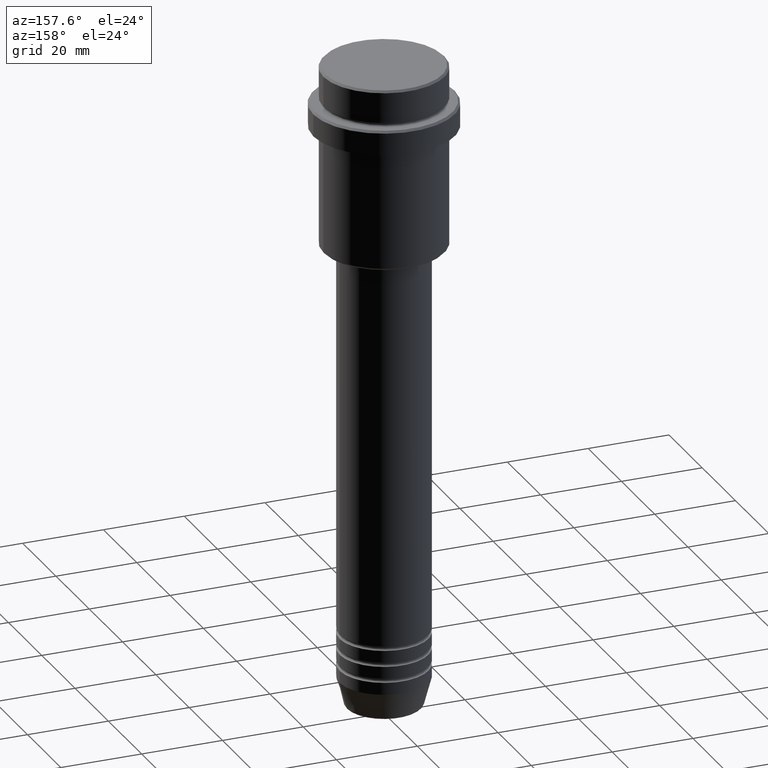
[diagram: clean part render]
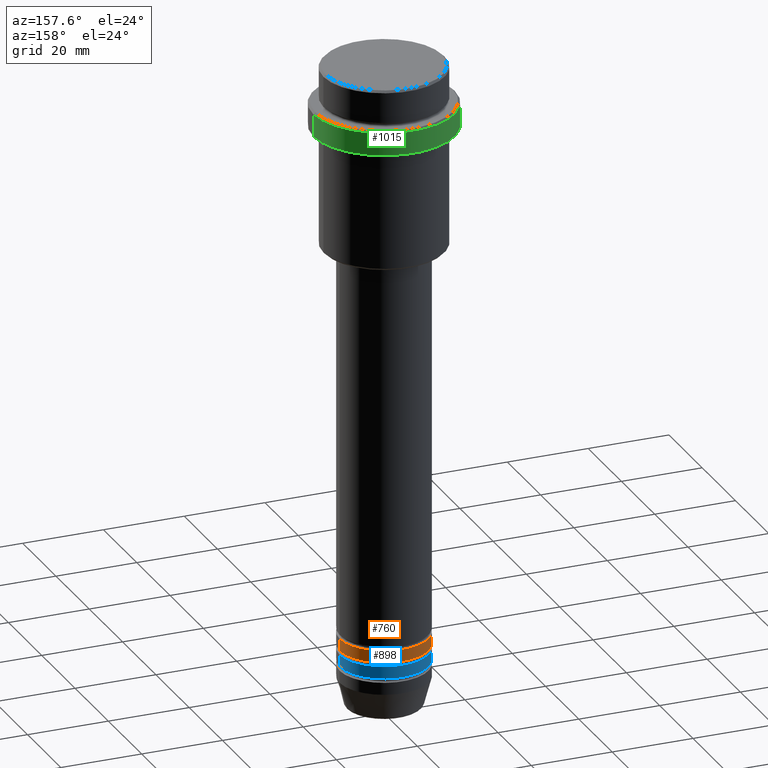
[diagram: same view with three faces highlighted in distinct colors, each labeled with its STEP entity id]
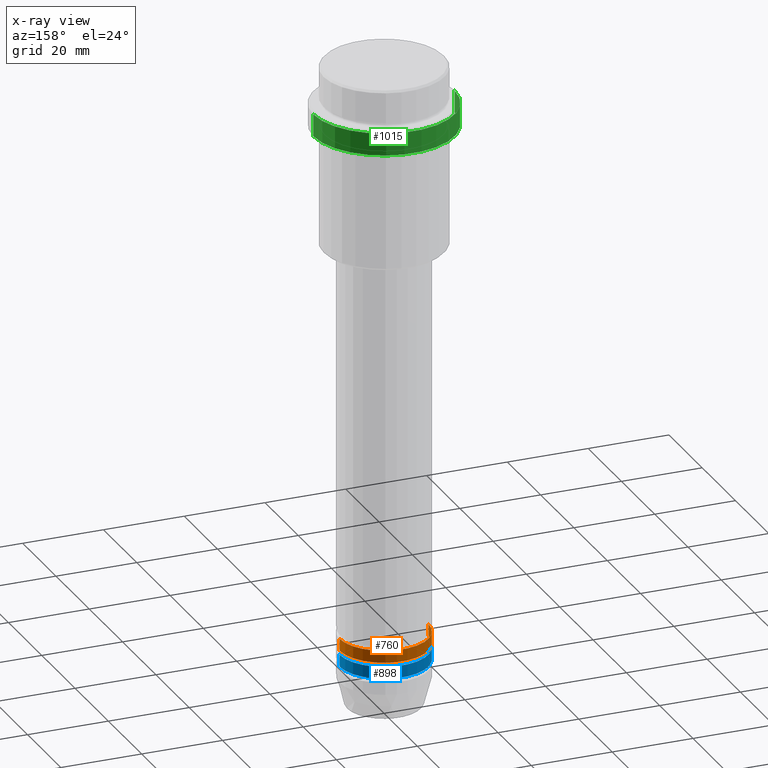
[diagram: x-ray of the same camera — body ghosted, the three highlighted faces saturated]
A machine part, auxiliary view with three faces highlighted in distinct colors.
The next image is the same camera in x-ray (body ghosted, the three faces saturated) — at least one of them is partly hidden behind the body in this view.
Their STEP definitions:

[orange] entity #760 — the highlighted cylindrical surface (partial cylindrical patch) has radius 11 mm, axis along (-0, -0, 1).
#5 = EDGE_CURVE ( 'NONE', #1026, #73, #725, .T. ) ;
#7 = DIRECTION ( 'NONE',  ( -0.000000000000000000, -0.000000000000000000, 1.000000000000000000 ) ) ;
#15 = AXIS2_PLACEMENT_3D ( 'NONE', #139, #239, #1223 ) ;
#60 = EDGE_CURVE ( 'NONE', #1026, #419, #1067, .T. ) ;
#73 = VERTEX_POINT ( 'NONE', #894 ) ;
#82 = DIRECTION ( 'NONE',  ( -0.000000000000000000, -0.000000000000000000, 1.000000000000000000 ) ) ;
#139 = CARTESIAN_POINT ( 'NONE',  ( 0.000000000000000000, 0.000000000000000000, -144.9999999999999147 ) ) ;
#209 = DIRECTION ( 'NONE',  ( 1.000000000000000000, 0.000000000000000000, 0.000000000000000000 ) ) ;
#229 = CARTESIAN_POINT ( 'NONE',  ( -11.00000000000000000, 1.347111479062088405E-15, 0.000000000000000000 ) ) ;
#239 = DIRECTION ( 'NONE',  ( -0.000000000000000000, -0.000000000000000000, 1.000000000000000000 ) ) ;
#317 = AXIS2_PLACEMENT_3D ( 'NONE', #591, #82, #500 ) ;
#320 = DIRECTION ( 'NONE',  ( -0.000000000000000000, -0.000000000000000000, 1.000000000000000000 ) ) ;
#419 = VERTEX_POINT ( 'NONE', #741 ) ;
#454 = AXIS2_PLACEMENT_3D ( 'NONE', #1218, #320, #209 ) ;
#500 = DIRECTION ( 'NONE',  ( 1.000000000000000000, 0.000000000000000000, 0.000000000000000000 ) ) ;
#535 = VECTOR ( 'NONE', #610, 1000.000000000000000 ) ;
#545 = CARTESIAN_POINT ( 'NONE',  ( -11.00000000000000000, 1.347111479062088405E-15, -141.9999999999999147 ) ) ;
#570 = EDGE_LOOP ( 'NONE', ( #1339, #829, #611, #739 ) ) ;
#591 = CARTESIAN_POINT ( 'NONE',  ( 0.000000000000000000, 0.000000000000000000, 0.000000000000000000 ) ) ;
#610 = DIRECTION ( 'NONE',  ( -0.000000000000000000, -0.000000000000000000, 1.000000000000000000 ) ) ;
#611 = ORIENTED_EDGE ( 'NONE', *, *, #1127, .F. ) ;
#681 = VERTEX_POINT ( 'NONE', #545 ) ;
#725 = LINE ( 'NONE', #1168, #535 ) ;
#726 = CIRCLE ( 'NONE', #454, 11.00000000000000000 ) ;
#739 = ORIENTED_EDGE ( 'NONE', *, *, #5, .F. ) ;
#741 = CARTESIAN_POINT ( 'NONE',  ( -11.00000000000000000, 1.347111479062088405E-15, -144.9999999999999147 ) ) ;
#760 = ADVANCED_FACE ( 'NONE', ( #1148 ), #940, .T. ) ;
#829 = ORIENTED_EDGE ( 'NONE', *, *, #1164, .T. ) ;
#894 = CARTESIAN_POINT ( 'NONE',  ( 11.00000000000000000, 0.000000000000000000, -141.9999999999999147 ) ) ;
#910 = VECTOR ( 'NONE', #7, 1000.000000000000000 ) ;
#940 = CYLINDRICAL_SURFACE ( 'NONE', #317, 11.00000000000000000 ) ;
#1026 = VERTEX_POINT ( 'NONE', #1378 ) ;
#1067 = CIRCLE ( 'NONE', #15, 11.00000000000000000 ) ;
#1127 = EDGE_CURVE ( 'NONE', #73, #681, #726, .T. ) ;
#1148 = FACE_OUTER_BOUND ( 'NONE', #570, .T. ) ;
#1164 = EDGE_CURVE ( 'NONE', #419, #681, #1306, .T. ) ;
#1168 = CARTESIAN_POINT ( 'NONE',  ( 11.00000000000000000, 0.000000000000000000, 0.000000000000000000 ) ) ;
#1218 = CARTESIAN_POINT ( 'NONE',  ( 0.000000000000000000, 0.000000000000000000, -141.9999999999999147 ) ) ;
#1223 = DIRECTION ( 'NONE',  ( 1.000000000000000000, 0.000000000000000000, 0.000000000000000000 ) ) ;
#1306 = LINE ( 'NONE', #229, #910 ) ;
#1339 = ORIENTED_EDGE ( 'NONE', *, *, #60, .T. ) ;
#1378 = CARTESIAN_POINT ( 'NONE',  ( 11.00000000000000000, 0.000000000000000000, -144.9999999999999147 ) ) ;

[blue] entity #898 — the highlighted cylindrical surface (partial cylindrical patch) has radius 11 mm, axis along (-0, -0, 1).
#6 = CARTESIAN_POINT ( 'NONE',  ( 0.000000000000000000, 0.000000000000000000, -145.9999999999999147 ) ) ;
#10 = DIRECTION ( 'NONE',  ( -0.000000000000000000, -0.000000000000000000, 1.000000000000000000 ) ) ;
#121 = EDGE_CURVE ( 'NONE', #859, #260, #911, .T. ) ;
#182 = CARTESIAN_POINT ( 'NONE',  ( 11.00000000000000000, 0.000000000000000000, -145.9999999999999147 ) ) ;
#226 = VERTEX_POINT ( 'NONE', #1161 ) ;
#256 = FACE_OUTER_BOUND ( 'NONE', #1210, .T. ) ;
#260 = VERTEX_POINT ( 'NONE', #182 ) ;
#265 = CARTESIAN_POINT ( 'NONE',  ( 0.000000000000000000, 0.000000000000000000, 0.000000000000000000 ) ) ;
#280 = DIRECTION ( 'NONE',  ( -0.000000000000000000, -0.000000000000000000, 1.000000000000000000 ) ) ;
#401 = ORIENTED_EDGE ( 'NONE', *, *, #715, .T. ) ;
#429 = EDGE_CURVE ( 'NONE', #260, #226, #578, .T. ) ;
#432 = VECTOR ( 'NONE', #758, 1000.000000000000000 ) ;
#497 = DIRECTION ( 'NONE',  ( 1.000000000000000000, 0.000000000000000000, 0.000000000000000000 ) ) ;
#510 = EDGE_CURVE ( 'NONE', #859, #1193, #538, .T. ) ;
#530 = CARTESIAN_POINT ( 'NONE',  ( -11.00000000000000000, 1.347111479062088405E-15, 0.000000000000000000 ) ) ;
#537 = AXIS2_PLACEMENT_3D ( 'NONE', #1061, #594, #853 ) ;
#538 = CIRCLE ( 'NONE', #537, 11.00000000000000000 ) ;
#578 = CIRCLE ( 'NONE', #1327, 11.00000000000000000 ) ;
#594 = DIRECTION ( 'NONE',  ( -0.000000000000000000, -0.000000000000000000, 1.000000000000000000 ) ) ;
#652 = AXIS2_PLACEMENT_3D ( 'NONE', #265, #280, #497 ) ;
#715 = EDGE_CURVE ( 'NONE', #1193, #226, #1081, .T. ) ;
#758 = DIRECTION ( 'NONE',  ( -0.000000000000000000, -0.000000000000000000, 1.000000000000000000 ) ) ;
#853 = DIRECTION ( 'NONE',  ( 1.000000000000000000, 0.000000000000000000, 0.000000000000000000 ) ) ;
#859 = VERTEX_POINT ( 'NONE', #1245 ) ;
#876 = CARTESIAN_POINT ( 'NONE',  ( -11.00000000000000000, 1.347111479062088405E-15, -148.9999999999999147 ) ) ;
#880 = DIRECTION ( 'NONE',  ( 1.000000000000000000, 0.000000000000000000, 0.000000000000000000 ) ) ;
#898 = ADVANCED_FACE ( 'NONE', ( #256 ), #1152, .T. ) ;
#899 = DIRECTION ( 'NONE',  ( -0.000000000000000000, -0.000000000000000000, 1.000000000000000000 ) ) ;
#911 = LINE ( 'NONE', #1352, #1158 ) ;
#1060 = ORIENTED_EDGE ( 'NONE', *, *, #121, .F. ) ;
#1061 = CARTESIAN_POINT ( 'NONE',  ( 0.000000000000000000, 0.000000000000000000, -148.9999999999999147 ) ) ;
#1081 = LINE ( 'NONE', #530, #432 ) ;
#1128 = ORIENTED_EDGE ( 'NONE', *, *, #510, .T. ) ;
#1152 = CYLINDRICAL_SURFACE ( 'NONE', #652, 11.00000000000000000 ) ;
#1158 = VECTOR ( 'NONE', #899, 1000.000000000000000 ) ;
#1161 = CARTESIAN_POINT ( 'NONE',  ( -11.00000000000000000, 1.347111479062088405E-15, -145.9999999999999147 ) ) ;
#1193 = VERTEX_POINT ( 'NONE', #876 ) ;
#1210 = EDGE_LOOP ( 'NONE', ( #1128, #401, #1214, #1060 ) ) ;
#1214 = ORIENTED_EDGE ( 'NONE', *, *, #429, .F. ) ;
#1245 = CARTESIAN_POINT ( 'NONE',  ( 11.00000000000000000, 0.000000000000000000, -148.9999999999999147 ) ) ;
#1327 = AXIS2_PLACEMENT_3D ( 'NONE', #6, #10, #880 ) ;
#1352 = CARTESIAN_POINT ( 'NONE',  ( 11.00000000000000000, 0.000000000000000000, 0.000000000000000000 ) ) ;

[green] entity #1015 — the highlighted cylindrical surface (partial cylindrical patch) has radius 17.5 mm, axis along (-0, -0, 1).
#31 = CARTESIAN_POINT ( 'NONE',  ( 17.50000000000000000, 0.000000000000000000, -15.00000000000000000 ) ) ;
#55 = CARTESIAN_POINT ( 'NONE',  ( 17.50000000000000000, 0.000000000000000000, 0.000000000000000000 ) ) ;
#76 = DIRECTION ( 'NONE',  ( 1.000000000000000000, 0.000000000000000000, 0.000000000000000000 ) ) ;
#110 = ORIENTED_EDGE ( 'NONE', *, *, #476, .F. ) ;
#140 = CARTESIAN_POINT ( 'NONE',  ( -17.50000000000000000, 2.143131898507868248E-15, -15.00000000000000000 ) ) ;
#149 = AXIS2_PLACEMENT_3D ( 'NONE', #592, #1178, #76 ) ;
#153 = LINE ( 'NONE', #487, #536 ) ;
#155 = DIRECTION ( 'NONE',  ( 1.000000000000000000, 0.000000000000000000, 0.000000000000000000 ) ) ;
#222 = EDGE_CURVE ( 'NONE', #1296, #365, #153, .T. ) ;
#241 = ORIENTED_EDGE ( 'NONE', *, *, #222, .T. ) ;
#278 = EDGE_LOOP ( 'NONE', ( #643, #241, #544, #110 ) ) ;
#365 = VERTEX_POINT ( 'NONE', #433 ) ;
#417 = EDGE_CURVE ( 'NONE', #1345, #1296, #561, .T. ) ;
#433 = CARTESIAN_POINT ( 'NONE',  ( -17.50000000000000000, 2.143131898507868248E-15, -9.500000000000014211 ) ) ;
#476 = EDGE_CURVE ( 'NONE', #1345, #1356, #823, .T. ) ;
#487 = CARTESIAN_POINT ( 'NONE',  ( -17.50000000000000000, 2.143131898507868248E-15, 0.000000000000000000 ) ) ;
#536 = VECTOR ( 'NONE', #848, 1000.000000000000000 ) ;
#544 = ORIENTED_EDGE ( 'NONE', *, *, #767, .T. ) ;
#561 = CIRCLE ( 'NONE', #870, 17.50000000000000000 ) ;
#592 = CARTESIAN_POINT ( 'NONE',  ( 0.000000000000000000, 0.000000000000000000, 0.000000000000000000 ) ) ;
#628 = CIRCLE ( 'NONE', #1117, 17.50000000000000000 ) ;
#643 = ORIENTED_EDGE ( 'NONE', *, *, #417, .T. ) ;
#696 = CARTESIAN_POINT ( 'NONE',  ( 17.50000000000000000, 0.000000000000000000, -9.500000000000014211 ) ) ;
#767 = EDGE_CURVE ( 'NONE', #365, #1356, #628, .T. ) ;
#823 = LINE ( 'NONE', #55, #841 ) ;
#841 = VECTOR ( 'NONE', #928, 1000.000000000000000 ) ;
#848 = DIRECTION ( 'NONE',  ( -0.000000000000000000, -0.000000000000000000, 1.000000000000000000 ) ) ;
#870 = AXIS2_PLACEMENT_3D ( 'NONE', #986, #990, #1175 ) ;
#928 = DIRECTION ( 'NONE',  ( -0.000000000000000000, -0.000000000000000000, 1.000000000000000000 ) ) ;
#941 = CYLINDRICAL_SURFACE ( 'NONE', #149, 17.50000000000000000 ) ;
#986 = CARTESIAN_POINT ( 'NONE',  ( 0.000000000000000000, 0.000000000000000000, -15.00000000000000000 ) ) ;
#990 = DIRECTION ( 'NONE',  ( -0.000000000000000000, -0.000000000000000000, 1.000000000000000000 ) ) ;
#1015 = ADVANCED_FACE ( 'NONE', ( #1267 ), #941, .T. ) ;
#1117 = AXIS2_PLACEMENT_3D ( 'NONE', #1393, #1140, #155 ) ;
#1140 = DIRECTION ( 'NONE',  ( 0.000000000000000000, 0.000000000000000000, -1.000000000000000000 ) ) ;
#1175 = DIRECTION ( 'NONE',  ( 1.000000000000000000, 0.000000000000000000, 0.000000000000000000 ) ) ;
#1178 = DIRECTION ( 'NONE',  ( -0.000000000000000000, -0.000000000000000000, 1.000000000000000000 ) ) ;
#1267 = FACE_OUTER_BOUND ( 'NONE', #278, .T. ) ;
#1296 = VERTEX_POINT ( 'NONE', #140 ) ;
#1345 = VERTEX_POINT ( 'NONE', #31 ) ;
#1356 = VERTEX_POINT ( 'NONE', #696 ) ;
#1393 = CARTESIAN_POINT ( 'NONE',  ( 0.000000000000000000, 0.000000000000000000, -9.500000000000014211 ) ) ;